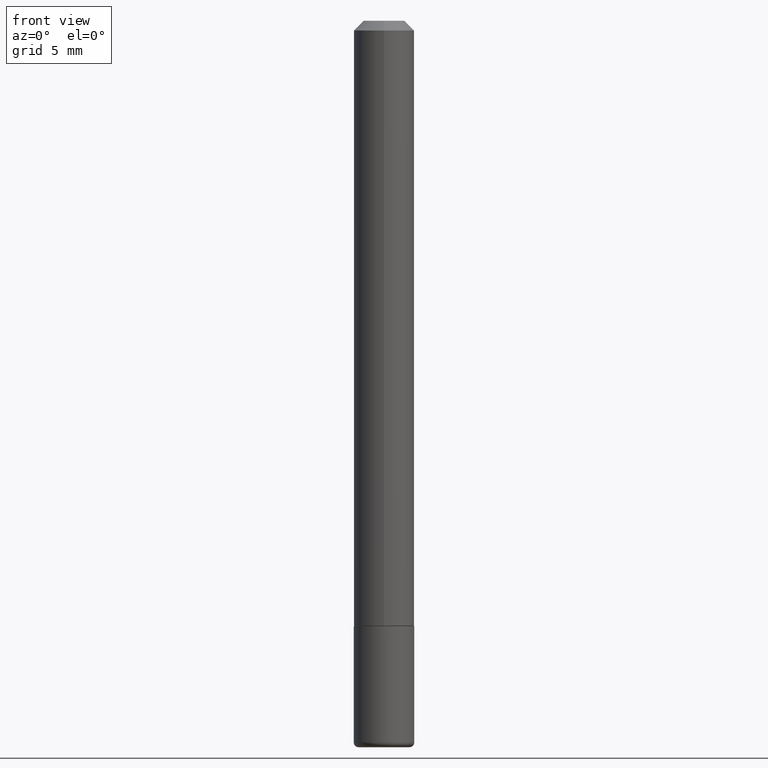
[diagram: clean part render]
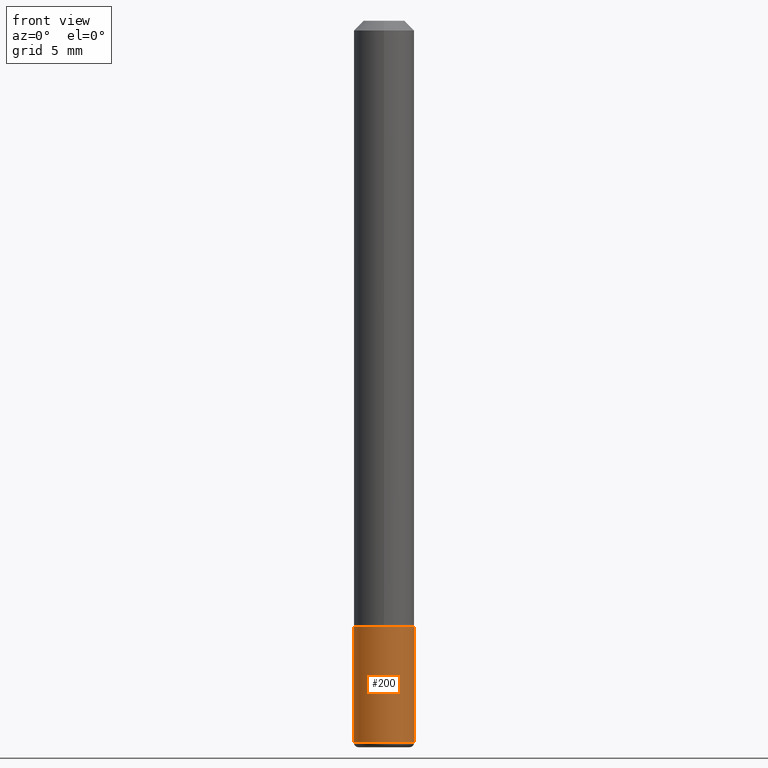
[diagram: same view with one face highlighted and labeled with its STEP entity id]
A machine part, front view. The second image highlights one B-rep face of the part: STEP entity #200.
In plain terms, the highlighted cylindrical surface (edge-blend (fillet) strip) has radius 1.5875 mm, axis along (-0, 0, 1).
Its self-contained STEP definition (entity closure, byte-faithful):
#2 = EDGE_CURVE ( 'NONE', #137, #171, #287, .T. ) ;
#50 = EDGE_CURVE ( 'NONE', #275, #137, #123, .T. ) ;
#53 = CARTESIAN_POINT ( 'NONE',  ( -0.06250000000000001388, -4.339240224365048067E-15, -1.250000000000000222 ) ) ;
#57 = DIRECTION ( 'NONE',  ( -2.445468806185136597E-29, 3.491481338843145583E-15, 1.000000000000000000 ) ) ;
#62 = DIRECTION ( 'NONE',  ( -2.445468806185136877E-29, 3.491481338843145188E-15, 1.000000000000000000 ) ) ;
#67 = FACE_OUTER_BOUND ( 'NONE', #172, .T. ) ;
#75 = VECTOR ( 'NONE', #127, 39.37007874015748143 ) ;
#87 = CARTESIAN_POINT ( 'NONE',  ( 3.056836007731421306E-29, -4.364351673553933260E-15, -1.250000000000000222 ) ) ;
#98 = CARTESIAN_POINT ( 'NONE',  ( 0.000000000000000000, 0.000000000000000000, 0.000000000000000000 ) ) ;
#113 = AXIS2_PLACEMENT_3D ( 'NONE', #387, #354, #128 ) ;
#123 = CIRCLE ( 'NONE', #113, 0.06250000000000001388 ) ;
#127 = DIRECTION ( 'NONE',  ( -2.445468806185136877E-29, 3.491481338843145188E-15, 1.000000000000000000 ) ) ;
#128 = DIRECTION ( 'NONE',  ( 1.000000000000000000, -6.982962677686261189E-15, 0.000000000000000000 ) ) ;
#137 = VERTEX_POINT ( 'NONE', #366 ) ;
#160 = CARTESIAN_POINT ( 'NONE',  ( 0.06250000000000001388, -4.364351673553918173E-16, 3.047610484872460571E-30 ) ) ;
#171 = VERTEX_POINT ( 'NONE', #309 ) ;
#172 = EDGE_LOOP ( 'NONE', ( #392, #378, #294, #409 ) ) ;
#177 = DIRECTION ( 'NONE',  ( 1.000000000000000000, -6.982962677686269077E-15, 0.000000000000000000 ) ) ;
#200 = ADVANCED_FACE ( 'NONE', ( #67 ), #313, .T. ) ;
#204 = CIRCLE ( 'NONE', #289, 0.06250000000000001388 ) ;
#219 = CARTESIAN_POINT ( 'NONE',  ( -0.06250000000000005551, -4.758217985026225489E-15, -1.490000000000000213 ) ) ;
#251 = CARTESIAN_POINT ( 'NONE',  ( -0.06250000000000001388, 4.440892098500627148E-16, -3.074334431409317165E-30 ) ) ;
#265 = DIRECTION ( 'NONE',  ( -2.445468806185136597E-29, 3.491481338843145583E-15, 1.000000000000000000 ) ) ;
#275 = VERTEX_POINT ( 'NONE', #219 ) ;
#277 = AXIS2_PLACEMENT_3D ( 'NONE', #98, #265, #384 ) ;
#287 = LINE ( 'NONE', #160, #75 ) ;
#289 = AXIS2_PLACEMENT_3D ( 'NONE', #87, #57, #177 ) ;
#294 = ORIENTED_EDGE ( 'NONE', *, *, #2, .T. ) ;
#308 = VERTEX_POINT ( 'NONE', #53 ) ;
#309 = CARTESIAN_POINT ( 'NONE',  ( 0.06250000000000001388, -4.800786840909324930E-15, -1.250000000000000222 ) ) ;
#313 = CYLINDRICAL_SURFACE ( 'NONE', #277, 0.06250000000000001388 ) ;
#320 = EDGE_CURVE ( 'NONE', #275, #308, #408, .T. ) ;
#354 = DIRECTION ( 'NONE',  ( -2.445468806185136597E-29, 3.491481338843145583E-15, 1.000000000000000000 ) ) ;
#366 = CARTESIAN_POINT ( 'NONE',  ( 0.06250000000000005551, -5.638742362231678986E-15, -1.490000000000000213 ) ) ;
#373 = EDGE_CURVE ( 'NONE', #308, #171, #204, .T. ) ;
#378 = ORIENTED_EDGE ( 'NONE', *, *, #50, .T. ) ;
#382 = VECTOR ( 'NONE', #62, 39.37007874015748143 ) ;
#384 = DIRECTION ( 'NONE',  ( 1.000000000000000000, -6.982962677686267499E-15, 4.876176775795935793E-29 ) ) ;
#387 = CARTESIAN_POINT ( 'NONE',  ( 3.643748521215853910E-29, -5.202307194876288105E-15, -1.490000000000000213 ) ) ;
#392 = ORIENTED_EDGE ( 'NONE', *, *, #320, .F. ) ;
#408 = LINE ( 'NONE', #251, #382 ) ;
#409 = ORIENTED_EDGE ( 'NONE', *, *, #373, .F. ) ;